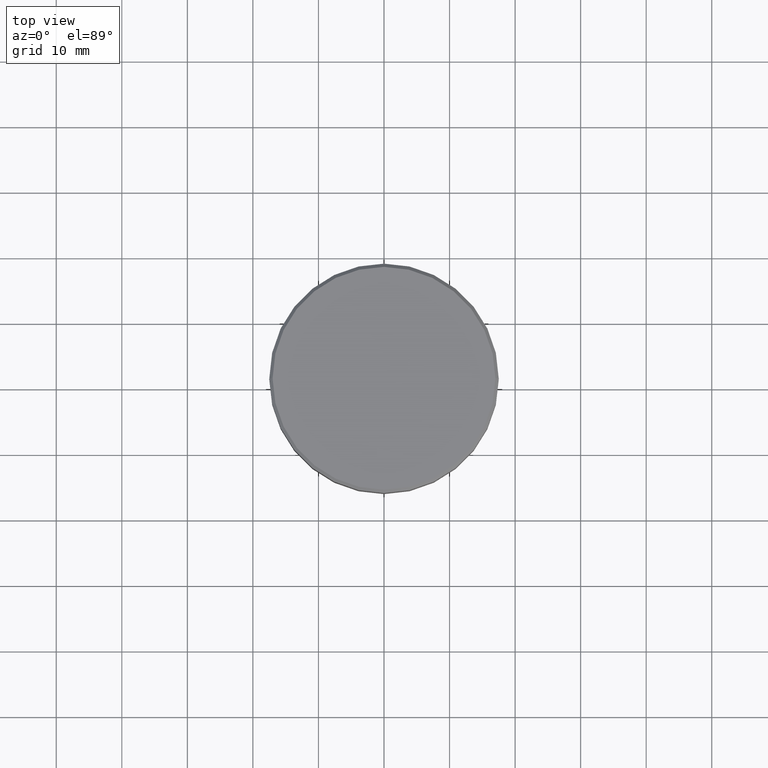
[diagram: clean part render]
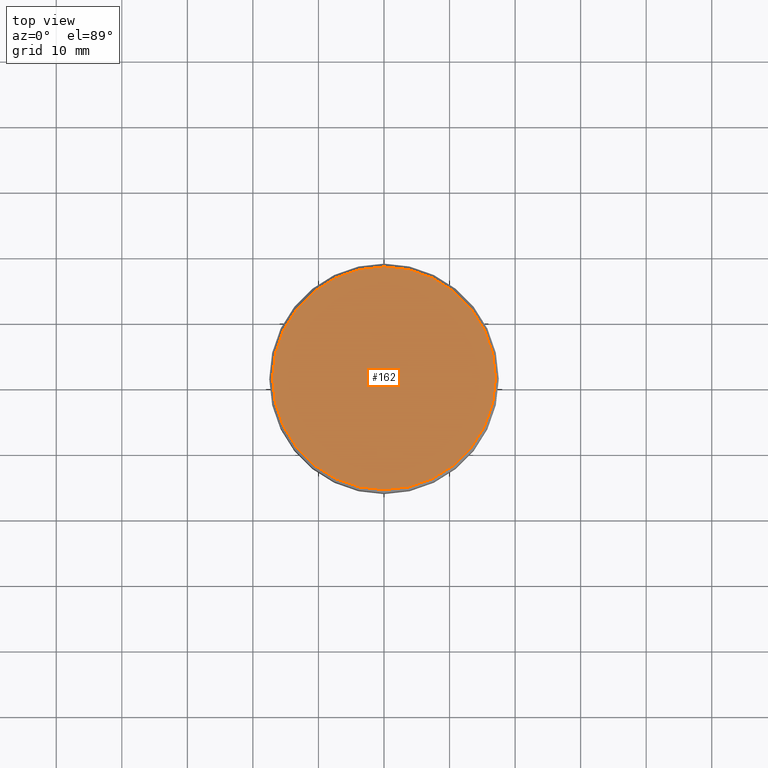
[diagram: same view with one face highlighted and labeled with its STEP entity id]
A machine part, top view. The second image highlights one B-rep face of the part: STEP entity #162.
In plain terms, the highlighted planar face has unit normal (0, -0, 1).
Its self-contained STEP definition (entity closure, byte-faithful):
#22 = PLANE ( 'NONE',  #280 ) ;
#25 = DIRECTION ( 'NONE',  ( -0.000000000000000000, -0.000000000000000000, 1.000000000000000000 ) ) ;
#71 = CIRCLE ( 'NONE', #413, 17.00000000000000000 ) ;
#73 = ORIENTED_EDGE ( 'NONE', *, *, #300, .T. ) ;
#98 = DIRECTION ( 'NONE',  ( 1.000000000000000000, 0.000000000000000000, 0.000000000000000000 ) ) ;
#123 = CARTESIAN_POINT ( 'NONE',  ( 0.000000000000000000, 0.000000000000000000, 0.000000000000000000 ) ) ;
#162 = ADVANCED_FACE ( 'NONE', ( #484 ), #22, .T. ) ;
#242 = CARTESIAN_POINT ( 'NONE',  ( -17.00000000000000000, 0.000000000000000000, 0.000000000000000000 ) ) ;
#243 = DIRECTION ( 'NONE',  ( -0.000000000000000000, -0.000000000000000000, 1.000000000000000000 ) ) ;
#259 = DIRECTION ( 'NONE',  ( 1.000000000000000000, 0.000000000000000000, 0.000000000000000000 ) ) ;
#263 = CIRCLE ( 'NONE', #323, 17.00000000000000000 ) ;
#280 = AXIS2_PLACEMENT_3D ( 'NONE', #363, #541, #397 ) ;
#300 = EDGE_CURVE ( 'NONE', #434, #586, #263, .T. ) ;
#310 = EDGE_CURVE ( 'NONE', #586, #434, #71, .T. ) ;
#323 = AXIS2_PLACEMENT_3D ( 'NONE', #553, #243, #98 ) ;
#363 = CARTESIAN_POINT ( 'NONE',  ( 0.000000000000000000, 0.000000000000000000, 0.000000000000000000 ) ) ;
#397 = DIRECTION ( 'NONE',  ( 1.000000000000000000, 0.000000000000000000, 0.000000000000000000 ) ) ;
#398 = EDGE_LOOP ( 'NONE', ( #564, #73 ) ) ;
#411 = CARTESIAN_POINT ( 'NONE',  ( 17.00000000000000000, 2.112515728529184067E-15, 0.000000000000000000 ) ) ;
#413 = AXIS2_PLACEMENT_3D ( 'NONE', #123, #25, #259 ) ;
#434 = VERTEX_POINT ( 'NONE', #411 ) ;
#484 = FACE_OUTER_BOUND ( 'NONE', #398, .T. ) ;
#541 = DIRECTION ( 'NONE',  ( 0.000000000000000000, -0.000000000000000000, 1.000000000000000000 ) ) ;
#553 = CARTESIAN_POINT ( 'NONE',  ( 0.000000000000000000, 0.000000000000000000, 0.000000000000000000 ) ) ;
#564 = ORIENTED_EDGE ( 'NONE', *, *, #310, .T. ) ;
#586 = VERTEX_POINT ( 'NONE', #242 ) ;